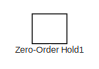
[diagram: root canvas - part 1/3, top left region]
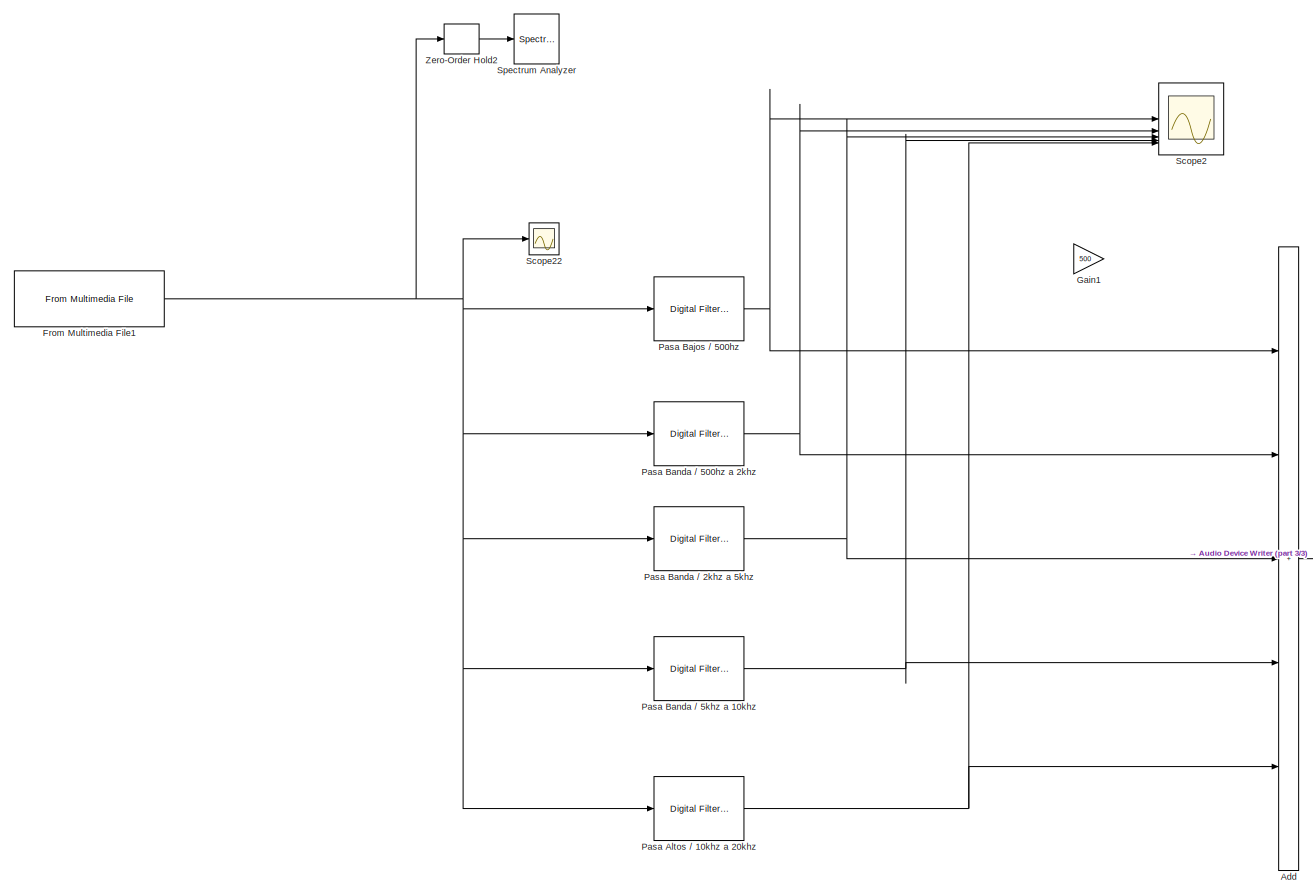
[diagram: root canvas - part 2/3, center side, full height]
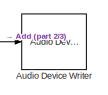
[diagram: root canvas - part 3/3, middle right region]
MODEL slx_2e349a2918ec
KIND model
CONFIG AbsTol = auto
CONFIG EnableMultiTasking = off
CONFIG FixedStep = auto
CONFIG MaxStep = auto
CONFIG MinStep = auto
CONFIG RelTol = 1e-3
CONFIG SampleTimeConstraint = Unconstrained
CONFIG SolverName = VariableStepAuto
CONFIG StartTime = 0.0
CONFIG StopTime = inf
BLOCK [Sum] Add
  IconShape = rectangular
  Inputs = +++++
BLOCK [Reference] Audio Device Writer  REF=dspsnks4/Audio Device
Writer
  LibrarySourceBlock = audiosinks/Audio Device\nWriter
  SourceBlock = dspsnks4/Audio Device\nWriter
  SourceType = Audio Device Writer
BLOCK [Reference] From Multimedia File1  REF=dspvision/From Multimedia File
  LibrarySourceBlock = audiosources/From Multimedia File
  SourceBlock = dspvision/From Multimedia File
  SourceType = From Multimedia File
BLOCK [Gain] Gain1
  Gain = 500
BLOCK [Reference] Pasa Altos // 10khz a 20khz  REF=dspfdesign/Digital
Filter Design
  SourceBlock = dspfdesign/Digital\nFilter Design
  SourceType = Digital Filter Design
  UserDataPersistent = on
BLOCK [Reference] Pasa Bajos // 500hz  REF=dspfdesign/Digital
Filter Design
  SourceBlock = dspfdesign/Digital\nFilter Design
  SourceType = Digital Filter Design
  UserDataPersistent = on
BLOCK [Reference] Pasa Banda // 2khz a 5khz  REF=dspfdesign/Digital
Filter Design
  SourceBlock = dspfdesign/Digital\nFilter Design
  SourceType = Digital Filter Design
  UserDataPersistent = on
BLOCK [Reference] Pasa Banda // 500hz a 2khz  REF=dspfdesign/Digital
Filter Design
  SourceBlock = dspfdesign/Digital\nFilter Design
  SourceType = Digital Filter Design
  UserDataPersistent = on
BLOCK [Reference] Pasa Banda // 5khz a 10khz  REF=dspfdesign/Digital
Filter Design
  SourceBlock = dspfdesign/Digital\nFilter Design
  SourceType = Digital Filter Design
  UserDataPersistent = on
BLOCK [Scope] Scope2
  Floating = off
  NumInputPorts = 5
  ScopeSpecificationString = Simulink.scopes.TimeScopeBlockCfg('CurrentConfiguration', extmgr.ConfigurationSet(extmgr.Configuration('Core','General UI',true),extmgr.Configuration('Core','Source UI',true),extmgr.Configuration('Sources','WiredSimulink',true,'DataLoggingVariableName','ScopeData2'),extmgr.Configuration('Visuals','Time Domain',true,'SerializedDisplays',{struct('MinYLimReal','-0.60042','MaxYLimReal','0.60631','YLab...<+4801ch>
BLOCK [Scope] Scope22
  Floating = off
  NumInputPorts = 1
  ScopeSpecificationString = Simulink.scopes.TimeScopeBlockCfg('CurrentConfiguration', extmgr.ConfigurationSet(extmgr.Configuration('Core','General UI',true),extmgr.Configuration('Core','Source UI',true),extmgr.Configuration('Sources','WiredSimulink',true),extmgr.Configuration('Visuals','Time Domain',true,'SerializedDisplays',{struct('MinYLimReal','-1.25','MaxYLimReal','1.25','YLabelReal','','MinYLimMag','0.00000','MaxYLimMag...<+1489ch>
BLOCK [SpectrumAnalyzer] Spectrum Analyzer
  FrequencyScale = Log
  FrequencySpan = Start and stop frequencies
  GraphicalSettings = {"GraphicalSettings":{"Style":{"BackgroundColor":[0.12941176470588237,0.12941176470588237,0.12941176470588237],"AxesColor":[0.07058823529411765,0.07058823529411765,0.07058823529411765],"LabelsColor":[0.8509803921568627,0.8509803921568627,0.8509803921568627],"PreserveColors":false,"Visible":[true,true],"LineStyle":["-","-"],"LineWidth":[1.5,1.5],"BarWidth":[0.9,0.9],"LineColor":[[1,0.90980392156862...<+1087ch>
  PlotAsTwoSidedSpectrum = off
  SampleRate = 44.1e3
  ScopeFrameLocation = window
  SelectedToolstripTab = spectrumAnalyzerToolstrip.estimationTab
  StartFrequency = 20
  WasSavedAsWebScope = on
  WindowInvariantSamplesPerUpdate = on
  WindowPosition = [345.000000,488.000000,1132.000000,626.000000,]
  YLimits = [-53.56074807,2.29453736]
BLOCK [ZeroOrderHold] Zero-Order Hold1
  SampleTime = 0.0001
BLOCK [ZeroOrderHold] Zero-Order Hold2
  SampleTime = 0.0001
LINE Add:1 -> Audio Device Writer:1
NET From Multimedia File1:1 -> Pasa Altos // 10khz a 20khz:1, Pasa Bajos // 500hz:1, Pasa Banda // 2khz a 5khz:1, Pasa Banda // 500hz a 2khz:1, Pasa Banda // 5khz a 10khz:1, Scope22:1, Zero-Order Hold2:1
NET Pasa Altos // 10khz a 20khz:1 -> Add:5, Scope2:5
NET Pasa Bajos // 500hz:1 -> Add:1, Scope2:1
NET Pasa Banda // 2khz a 5khz:1 -> Add:3, Scope2:3
NET Pasa Banda // 500hz a 2khz:1 -> Add:2, Scope2:2
NET Pasa Banda // 5khz a 10khz:1 -> Add:4, Scope2:4
LINE Zero-Order Hold2:1 -> Spectrum Analyzer:1
note: NET lines group one-source signal fan-out (src -> all destinations, sorted); 1:1 wires keep LINE
